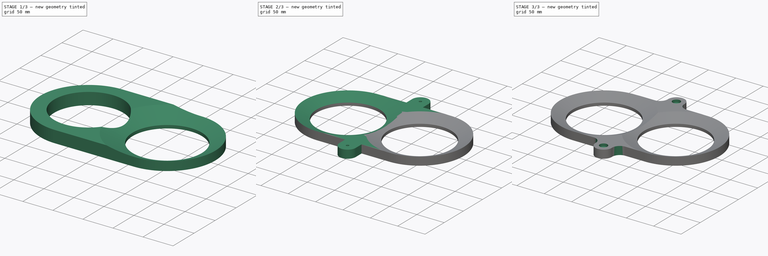
[diagram: build sequence overview — one tinted view per stage of 3, left to right]
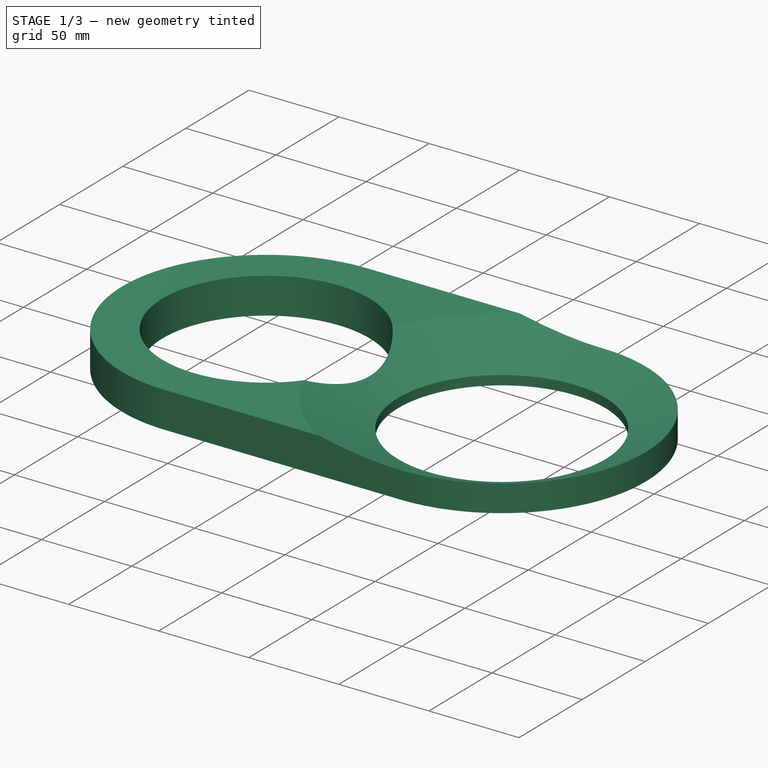
[diagram: stage 1 of 3 — iso view after this stage's code; geometry added in this stage tinted green]
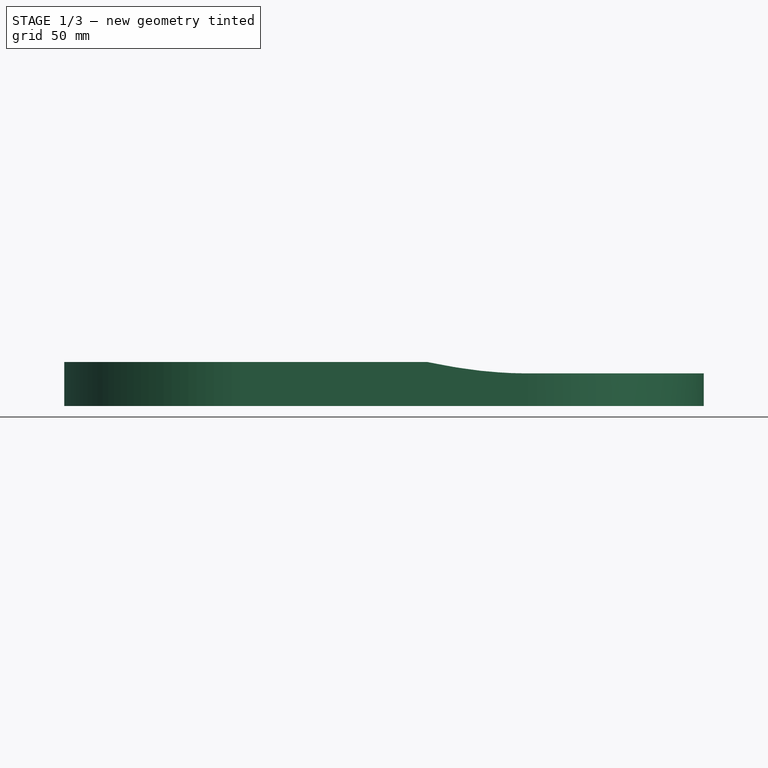
[diagram: stage 1 of 3 — front view after this stage's code; geometry added in this stage tinted green]
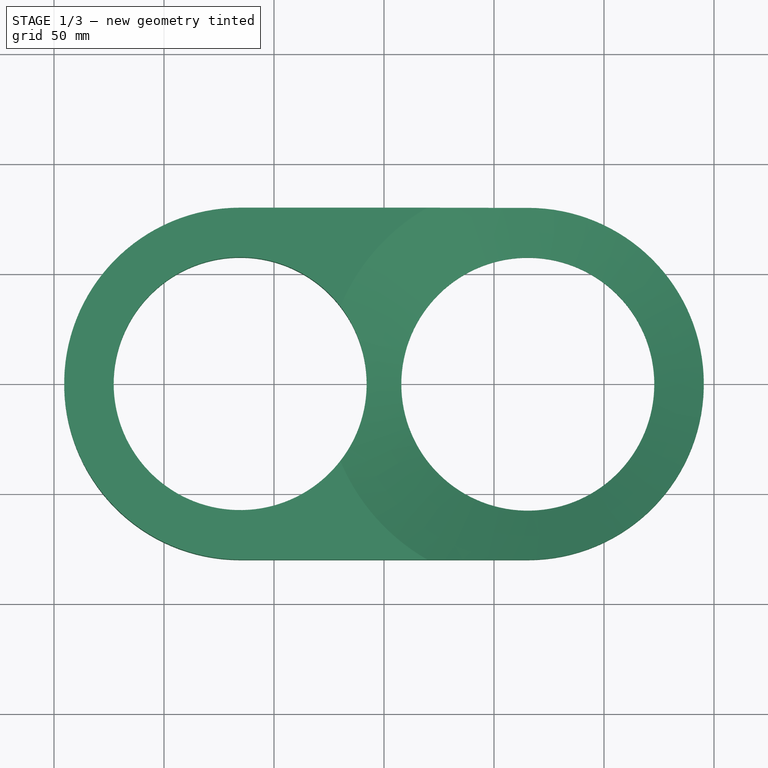
[diagram: stage 1 of 3 — top view after this stage's code; geometry added in this stage tinted green]
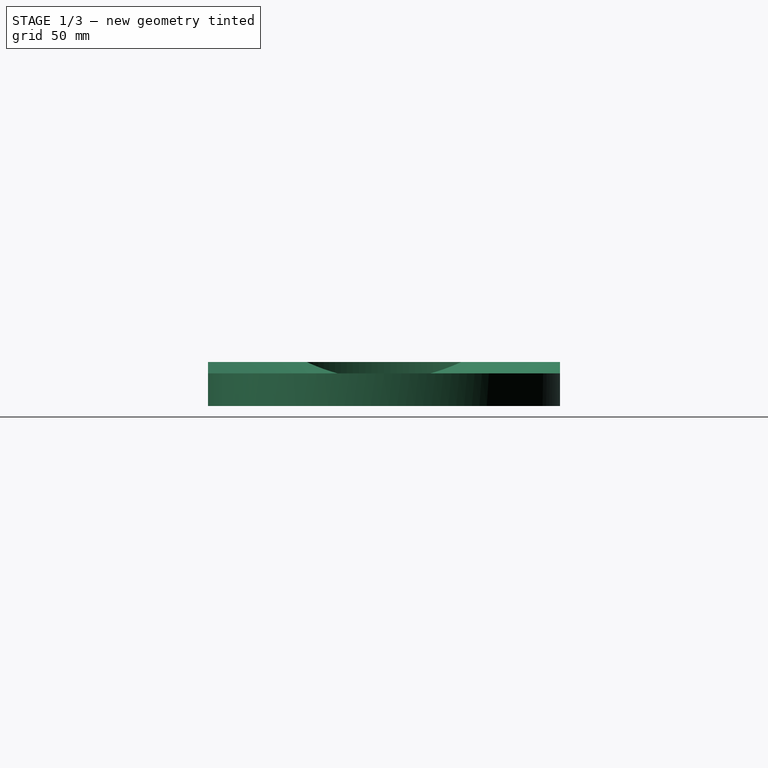
[diagram: stage 1 of 3 — right view after this stage's code; geometry added in this stage tinted green]
FCSTD DOCUMENT  (FreeCAD 1.0R39109 (Git))
Label: new_under_lock_bass
License: All rights reserved
LicenseURL: https://en.wikipedia.org/wiki/All_rights_reserved
objects: Sketcher::SketchObject×6, PartDesign::Pad×2, PartDesign::Groove×2, PartDesign::Pocket×2, PartDesign::Fillet×1, PartDesign::Body×1
note: 34 computed .brp shape members not serialized (recipe doc carries the construction recipe); baked Part::Feature solids carry a one-line shape summary decoded from their .brp

FEATURE [Sketcher::SketchObject] Sketch
  ArcFitTolerance = 1e-06
  AttachmentSupport = -> [XY_Plane]
  FullyConstrained = true
  MakeInternals = false
  MapMode = 5
  sketch-geometry (7):
    g0: Circle CenterX=65.375 CenterY=0 CenterZ=0 NormalX=0 NormalY=0 NormalZ=1 AngleXU=0 Radius=57.5
    g1: Circle CenterX=-65.375 CenterY=0 CenterZ=0 NormalX=0 NormalY=0 NormalZ=1 AngleXU=0 Radius=57.5
    g2: LineSegment [constr] StartX=-7.875 StartY=0 StartZ=0 EndX=7.875 EndY=0 EndZ=0
    g3: ArcOfCircle CenterX=-65.375 CenterY=0 CenterZ=0 NormalX=0 NormalY=0 NormalZ=1 AngleXU=0 Radius=80 StartAngle=1.5708 EndAngle=4.71239
    g4: ArcOfCircle CenterX=65.375 CenterY=0 CenterZ=0 NormalX=0 NormalY=0 NormalZ=1 AngleXU=0 Radius=80 StartAngle=4.71239 EndAngle=7.85398
    g5: LineSegment StartX=-65.375 StartY=80 StartZ=0 EndX=65.3751 EndY=80 EndZ=0
    g6: LineSegment StartX=65.3751 StartY=-80 StartZ=0 EndX=-65.3751 EndY=-80 EndZ=0
  constraints (22):
    c: Diameter(g0) = 115
    c: Equal(g1,g0)
    c: Horizontal(g1,g0)
    c: PointOnObject(g2,g1)
    c: PointOnObject(g2,g0)
    c: Horizontal(g2)
    c: Horizontal(g2,g0)
    c: DistanceX(g2,g2) = 15.75
    c: Distance(g2,g-1) = 7.875
    c: Horizontal(g0,g-1)
    c: Coincident(g3,g1)
    c: Coincident(g4,g0)
    c: Equal(g4,g3)
    c: Horizontal(g4,g3)
    c: Horizontal(g3,g4)
    c: Vertical(g4,g4)
    c: Coincident(g5,g3)
    c: Coincident(g5,g4)
    c: Coincident(g6,g4)
    c: Coincident(g6,g3)
    c: Radius(g3) = 80
    c: Vertical(g3,g1)
FEATURE [PartDesign::Pad] Pad
  Direction = (0,0,1)
  Length = 20
  Length2 = 10
  Profile = -> Sketch
  ReferenceAxis = -> Sketch [N_Axis]
  Refine = true
  Suppressed = false
  Type = 0
FEATURE [Sketcher::SketchObject] Sketch001
  ArcFitTolerance = 1e-06
  AttachmentSupport = -> [XZ_Plane]
  FullyConstrained = true
  MakeInternals = true
  MapMode = 5
  Placement = pos=(0,0,0) rot=(1,0,0;1.5708rad)
  sketch-geometry (3):
    g0: LineSegment StartX=122.5 StartY=5 StartZ=0 EndX=157.5 EndY=20 EndZ=0
    g1: LineSegment StartX=157.5 StartY=20 StartZ=0 EndX=122.5 EndY=20 EndZ=0
    g2: LineSegment StartX=122.5 StartY=20 StartZ=0 EndX=122.5 EndY=5 EndZ=0
  constraints (9):
    c: Coincident(g0,g1)
    c: Horizontal(g1)
    c: Coincident(g1,g2)
    c: Coincident(g2,g0)
    c: DistanceX(g1,g1) = 35
    c: DistanceY(g2,g2) = 15
    c: Vertical(g2)
    c: DistanceY(g-1,g1) = 20
    c: DistanceX(g-1,g1) = 122.5
FEATURE [PartDesign::Groove] Groove
  Angle = 360
  Angle2 = 60
  Axis = (0,0,1)
  Base = (65.375,0,20)
  BaseFeature = -> Pad
  Profile = -> Sketch001
  ReferenceAxis = -> Pad [Edge18]
  Refine = true
  Suppressed = false
  Type = 0
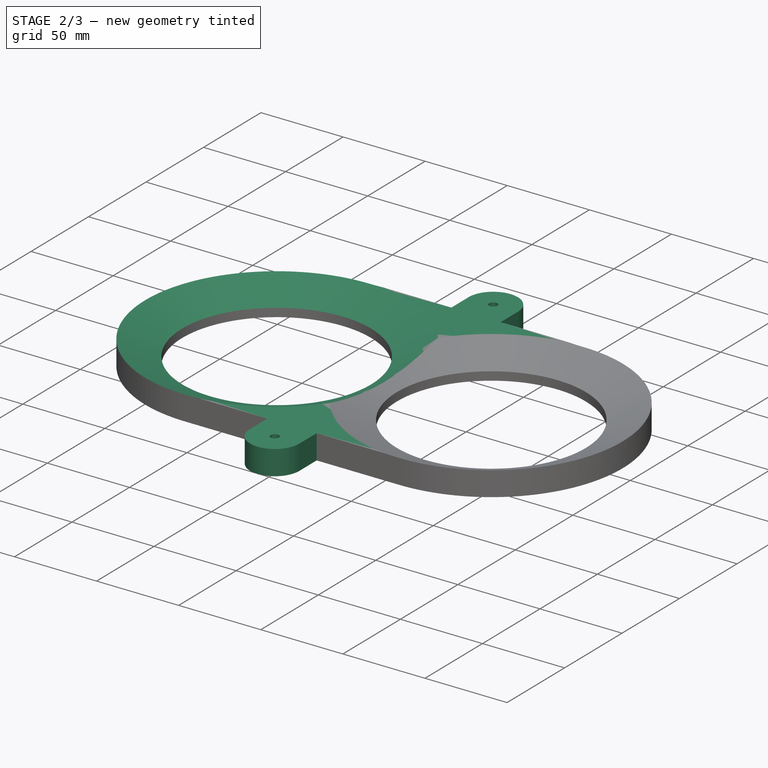
[diagram: stage 2 of 3 — iso view after this stage's code; geometry added in this stage tinted green]
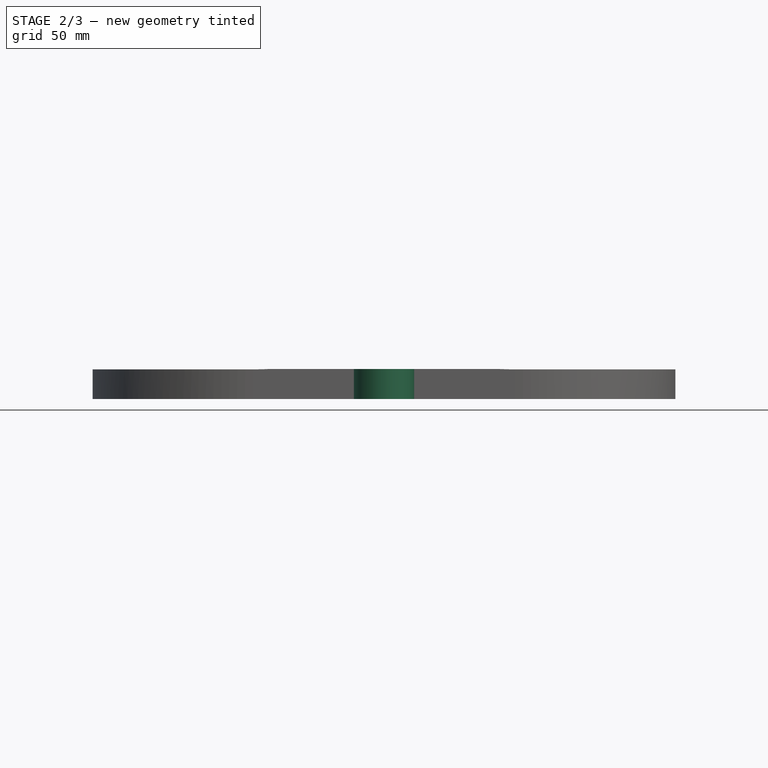
[diagram: stage 2 of 3 — front view after this stage's code; geometry added in this stage tinted green]
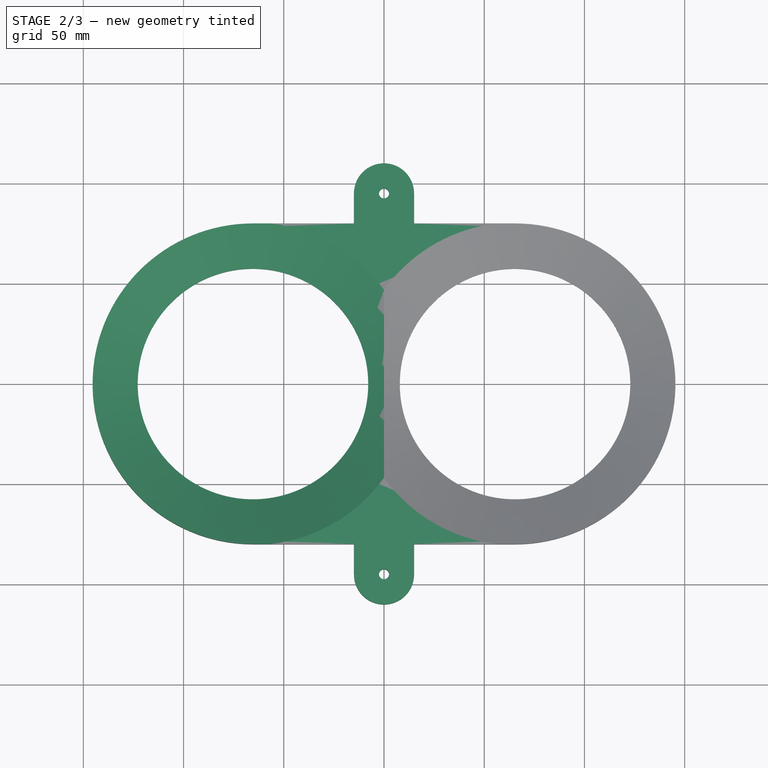
[diagram: stage 2 of 3 — top view after this stage's code; geometry added in this stage tinted green]
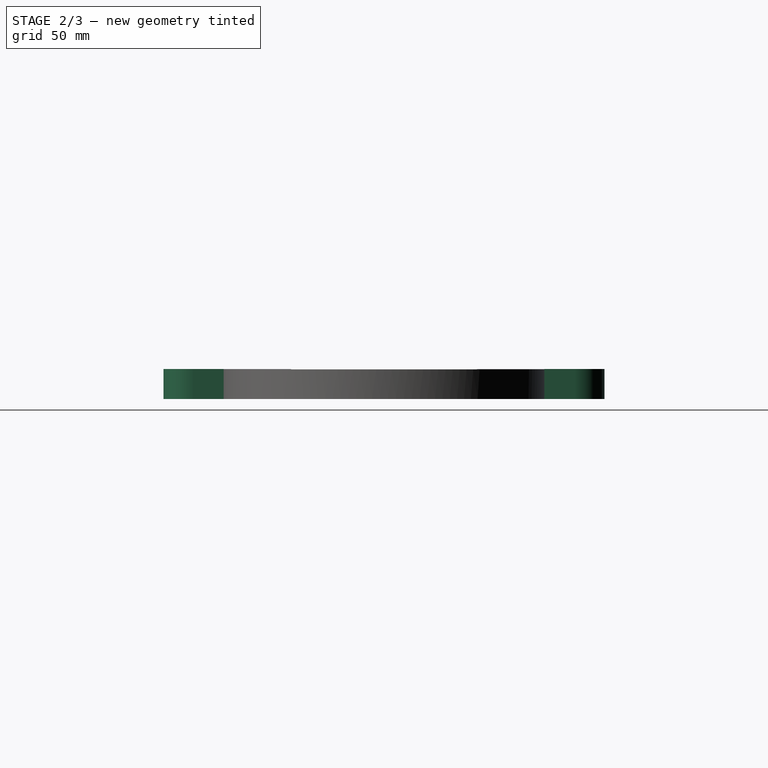
[diagram: stage 2 of 3 — right view after this stage's code; geometry added in this stage tinted green]
FEATURE [Sketcher::SketchObject] Sketch002
  ArcFitTolerance = 1e-06
  AttachmentSupport = -> [XZ_Plane]
  FullyConstrained = true
  MakeInternals = false
  MapMode = 5
  Placement = pos=(0,0,0) rot=(1,0,0;1.5708rad)
  sketch-geometry (3):
    g0: LineSegment StartX=-122.5 StartY=20 StartZ=0 EndX=-157.5 EndY=20 EndZ=0
    g1: LineSegment StartX=-157.5 StartY=20 StartZ=0 EndX=-122.5 EndY=5 EndZ=0
    g2: LineSegment StartX=-122.5 StartY=5 StartZ=0 EndX=-122.5 EndY=20 EndZ=0
  constraints (9):
    c: Horizontal(g0)
    c: Coincident(g0,g1)
    c: Coincident(g1,g2)
    c: Coincident(g2,g0)
    c: Distance(g2,g2) = 15
    c: DistanceX(g0,g0) = 35
    c: DistanceX(g0,g-1) = 122.5
    c: Vertical(g2)
    c: DistanceY(g-1,g0) = 20
FEATURE [PartDesign::Groove] Groove001
  Angle = 360
  Angle2 = 60
  Axis = (0,0,1)
  Base = (-65.375,0,20)
  BaseFeature = -> Groove
  Profile = -> Sketch002
  ReferenceAxis = -> Groove [Edge25]
  Refine = true
  Reversed = true
  Suppressed = false
  Type = 0
FEATURE [Sketcher::SketchObject] Sketch003
  ArcFitTolerance = 1e-06
  AttachmentSupport = -> [Groove001]
  FullyConstrained = true
  MakeInternals = false
  MapMode = 5
  Placement = pos=(0,0,20) rot=(0,0,1;0rad)
  sketch-geometry (4):
    g0: LineSegment StartX=-160 StartY=90 StartZ=0 EndX=-160 EndY=-90 EndZ=0
    g1: LineSegment StartX=-160 StartY=-90 StartZ=0 EndX=160 EndY=-90 EndZ=0
    g2: LineSegment StartX=160 StartY=-90 StartZ=0 EndX=160 EndY=90 EndZ=0
    g3: LineSegment StartX=160 StartY=90 StartZ=0 EndX=-160 EndY=90 EndZ=0
  constraints (12):
    c: Coincident(g0,g1)
    c: Coincident(g1,g2)
    c: Coincident(g2,g3)
    c: Coincident(g3,g0)
    c: Vertical(g0)
    c: Vertical(g2)
    c: Horizontal(g1)
    c: Horizontal(g3)
    c: DistanceX(g1,g1) = 320
    c: DistanceY(g2,g2) = 180
    c: DistanceY(g1,g-1) = 90
    c: DistanceX(g-1,g1) = 160
FEATURE [PartDesign::Pocket] Pocket
  BaseFeature = -> Groove001
  Direction = (0,0,-1)
  Length = 5
  Length2 = 5
  Profile = -> Sketch003
  ReferenceAxis = -> Sketch003 [N_Axis]
  Refine = true
  Suppressed = false
  Type = 0
FEATURE [Sketcher::SketchObject] Sketch004
  ArcFitTolerance = 1e-06
  AttachmentSupport = -> [Pocket]
  FullyConstrained = true
  MakeInternals = false
  MapMode = 5
  Placement = pos=(0,0,15) rot=(0,0,1;0rad)
  sketch-geometry (10):
    g0: ArcOfCircle CenterX=0 CenterY=80 CenterZ=0 NormalX=0 NormalY=0 NormalZ=1 AngleXU=0 Radius=15 StartAngle=3.14159 EndAngle=6.28319
    g1: ArcOfCircle CenterX=6e-16 CenterY=95 CenterZ=0 NormalX=0 NormalY=0 NormalZ=1 AngleXU=0 Radius=15 StartAngle=0 EndAngle=3.14159
    g2: LineSegment StartX=-15 StartY=80 StartZ=0 EndX=-15 EndY=95 EndZ=0
    g3: LineSegment StartX=15 StartY=80 StartZ=0 EndX=15 EndY=95 EndZ=0
    g4: ArcOfCircle CenterX=0 CenterY=-80 CenterZ=0 NormalX=0 NormalY=0 NormalZ=1 AngleXU=0 Radius=15 StartAngle=1e-16 EndAngle=3.14159
    g5: ArcOfCircle CenterX=0 CenterY=-95 CenterZ=0 NormalX=0 NormalY=0 NormalZ=1 AngleXU=0 Radius=15 StartAngle=3.14159 EndAngle=6.28319
    g6: LineSegment StartX=15 StartY=-80 StartZ=0 EndX=15 EndY=-95 EndZ=0
    g7: LineSegment StartX=-15 StartY=-80 StartZ=0 EndX=-15 EndY=-95 EndZ=0
    g8: Circle CenterX=6e-16 CenterY=95 CenterZ=0 NormalX=0 NormalY=0 NormalZ=1 AngleXU=0 Radius=2.5
    g9: Circle CenterX=0 CenterY=-95 CenterZ=0 NormalX=0 NormalY=0 NormalZ=1 AngleXU=0 Radius=2.5
  constraints (24):
    c: Tangent(g0,g2) = 1.5708
    c: Tangent(g0,g3) = -1.5708
    c: Tangent(g1,g2) = 1.5708
    c: Tangent(g1,g3) = -1.5708
    c: Equal(g0,g1)
    c: Vertical(g3)
    c: PointOnObject(g0,g-2)
    c: Tangent(g4,g6) = 1.5708
    c: Tangent(g4,g7) = -1.5708
    c: Tangent(g5,g6) = 1.5708
    c: Tangent(g5,g7) = -1.5708
    c: Equal(g4,g5)
    c: Vertical(g7)
    c: PointOnObject(g4,g-2)
    c: Equal(g6,g3)
    c: Equal(g1,g4)
    c: DistanceY(g-1,g0) = 80
    c: DistanceY(g3,g3) = 15
    c: Radius(g1) = 15
    c: DistanceY(g4,g-1) = 80
    c: Coincident(g8,g1)
    c: Coincident(g9,g5)
    c: Diameter(g9) = 5
    c: Equal(g8,g9)
FEATURE [PartDesign::Pad] Pad001
  BaseFeature = -> Pocket
  Direction = (0,0,1)
  Length = 15
  Length2 = 10
  Profile = -> Sketch004
  ReferenceAxis = -> Sketch004 [N_Axis]
  Refine = true
  Reversed = true
  Suppressed = false
  Type = 0
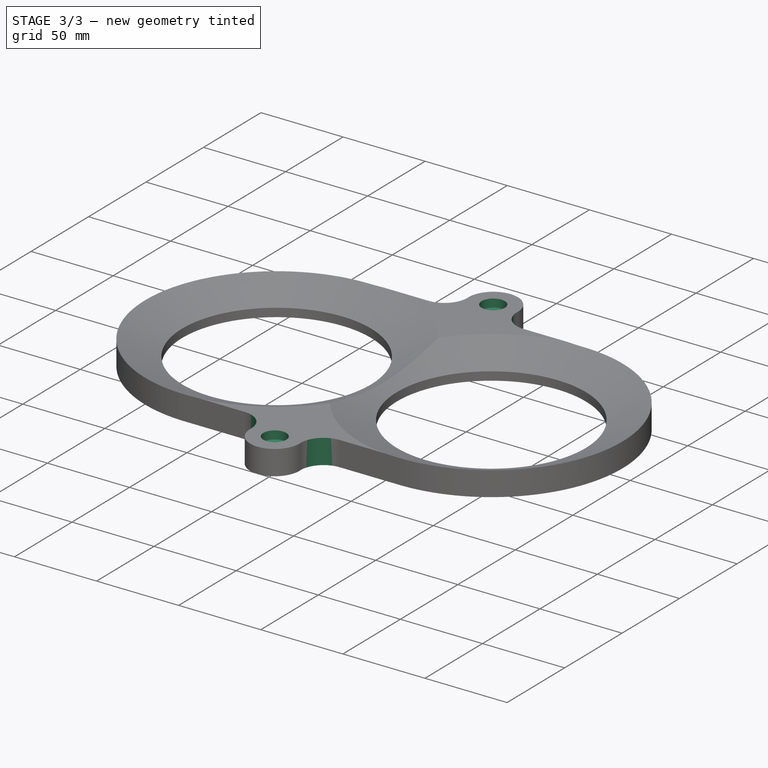
[diagram: stage 3 of 3 — iso view after this stage's code; geometry added in this stage tinted green]
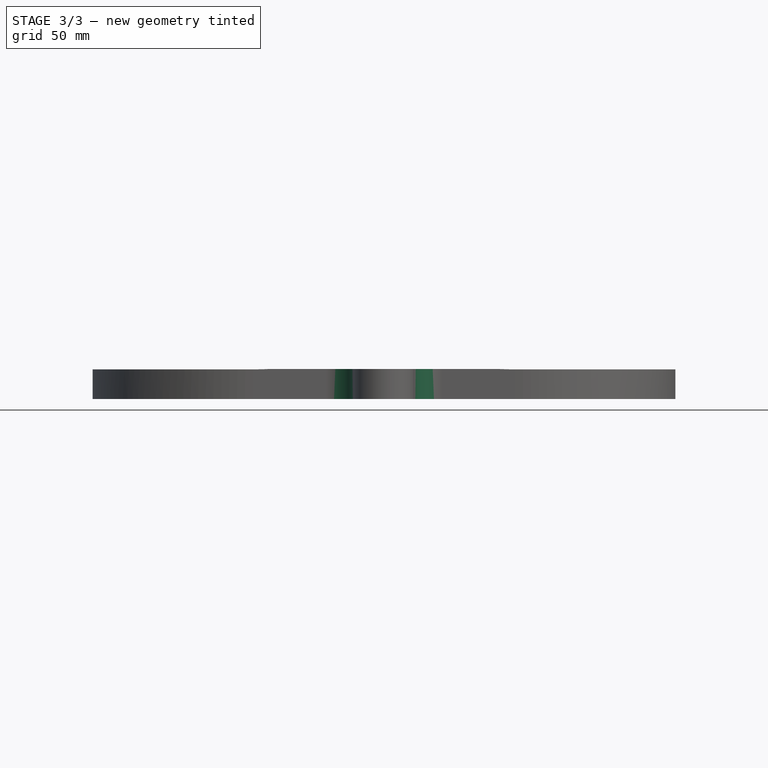
[diagram: stage 3 of 3 — front view after this stage's code; geometry added in this stage tinted green]
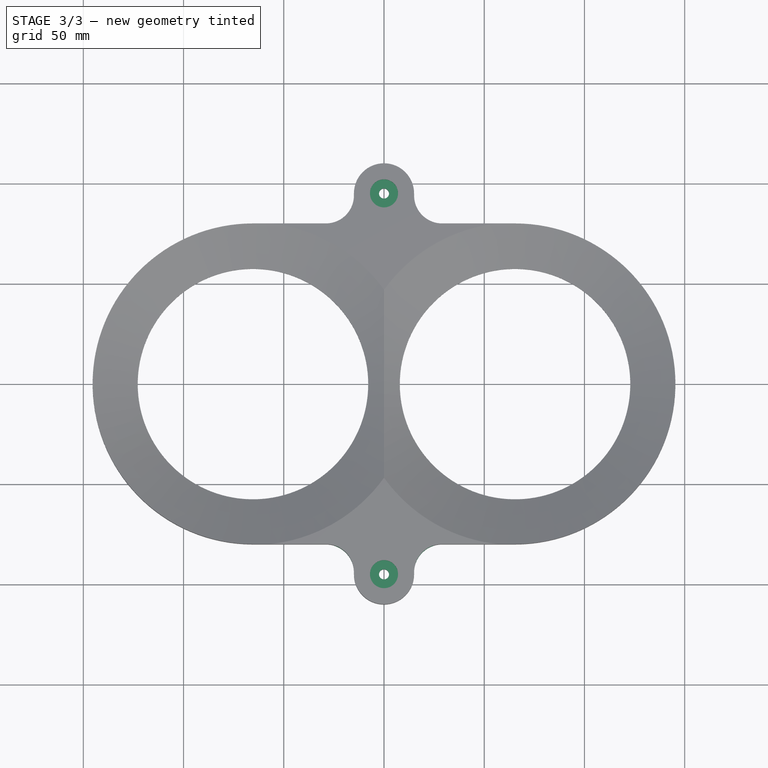
[diagram: stage 3 of 3 — top view after this stage's code; geometry added in this stage tinted green]
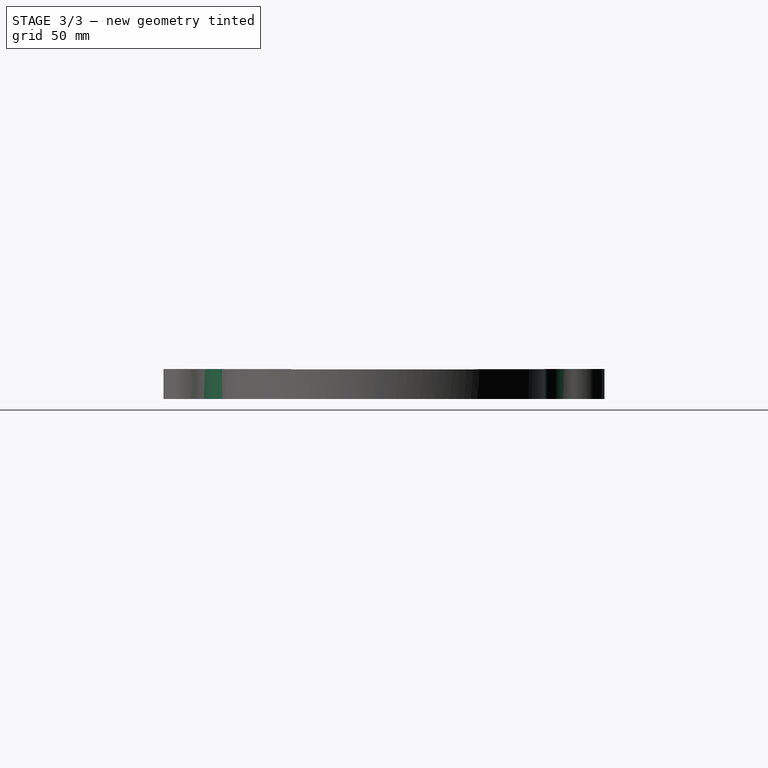
[diagram: stage 3 of 3 — right view after this stage's code; geometry added in this stage tinted green]
FEATURE [Sketcher::SketchObject] Sketch005
  ArcFitTolerance = 1e-06
  AttachmentSupport = -> [Pad001]
  FullyConstrained = true
  MakeInternals = false
  MapMode = 5
  Placement = pos=(0,0,15) rot=(0,0,1;0rad)
  sketch-geometry (2):
    g0: Circle CenterX=0 CenterY=-95 CenterZ=0 NormalX=0 NormalY=0 NormalZ=1 AngleXU=0 Radius=7
    g1: Circle CenterX=0 CenterY=95 CenterZ=0 NormalX=0 NormalY=0 NormalZ=1 AngleXU=0 Radius=7
  constraints (6):
    c: PointOnObject(g0,g-2)
    c: PointOnObject(g1,g-2)
    c: Equal(g1,g0)
    c: Diameter(g1) = 14
    c: DistanceY(g0,g1) = 190
    c: DistanceY(g0,g-1) = 95
FEATURE [PartDesign::Pocket] Pocket001
  BaseFeature = -> Pad001
  Direction = (0,0,-1)
  Length = 5
  Length2 = 5
  Profile = -> Sketch005
  ReferenceAxis = -> Sketch005 [N_Axis]
  Refine = true
  Suppressed = false
  Type = 0
FEATURE [PartDesign::Fillet] Fillet
  Base = -> Pocket001 [Edge38,Edge5,Edge42,Edge48]
  BaseFeature = -> Pocket001
  Radius = 14
  Refine = true
  SupportTransform = false
  Suppressed = false
  UseAllEdges = false
FEATURE [PartDesign::Body] Body
  AllowCompound = false
  Group = -> [Sketch,Pad,Sketch001,Groove,Sketch002,Groove001,Sketch003,Pocket,Sketch004,Pad001,Sketch005,Pocket001,Fillet]
  Origin = -> Origin
  Tip = -> Fillet
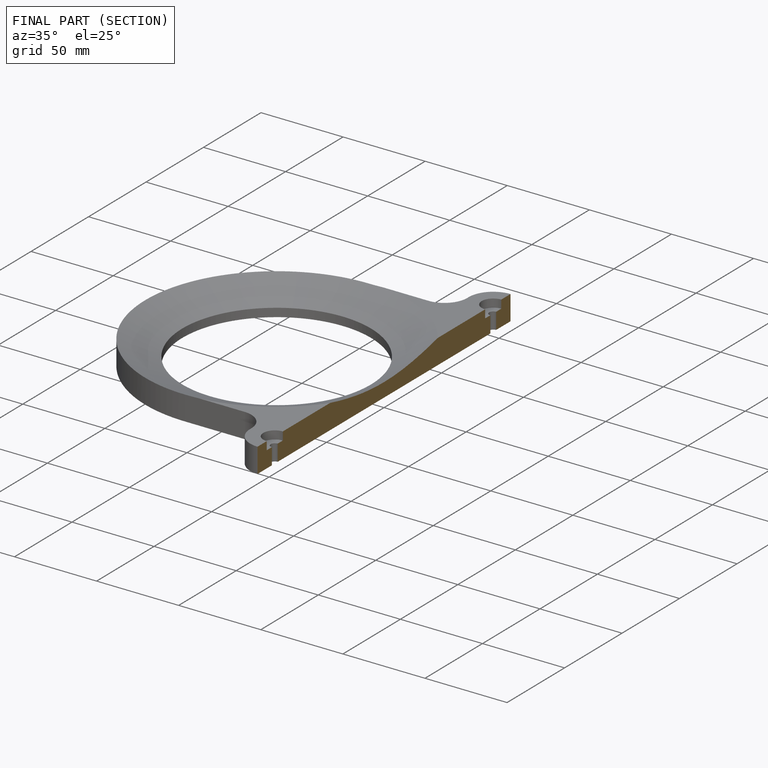
[diagram: finished part — half-section view (interior)]
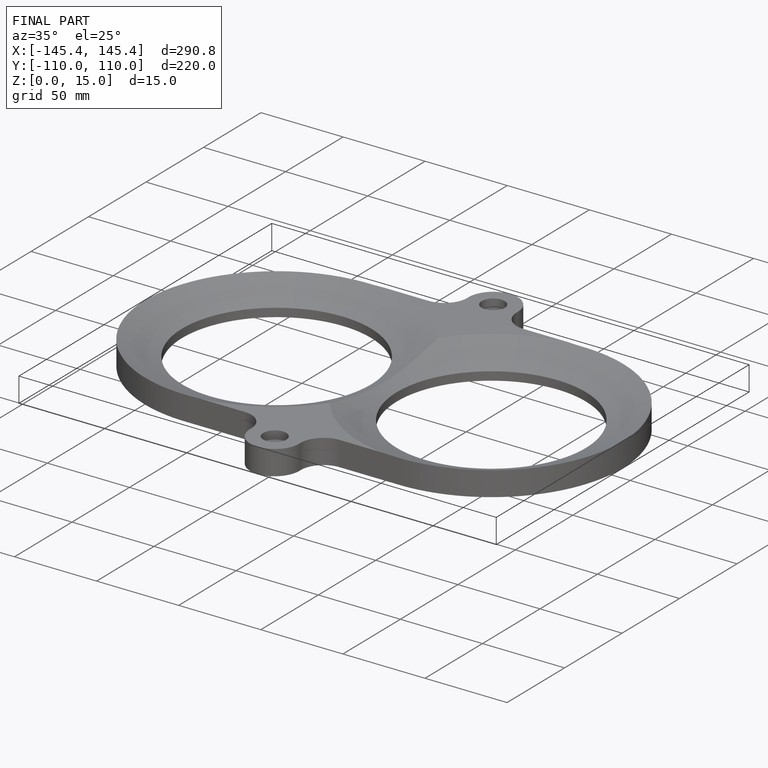
[diagram: finished part — iso view with bounding-box wireframe]
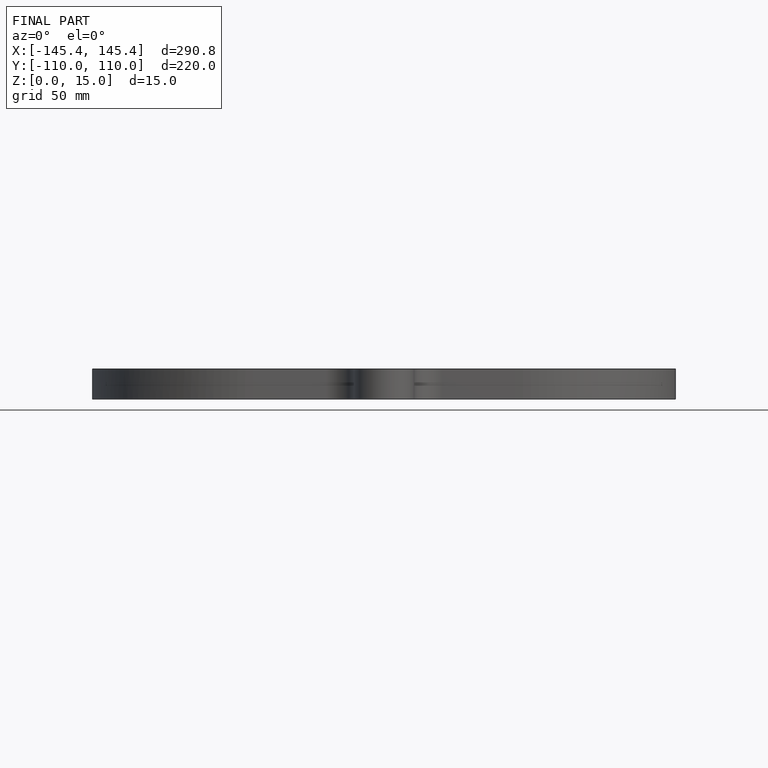
[diagram: finished part — front view with bounding-box wireframe]
